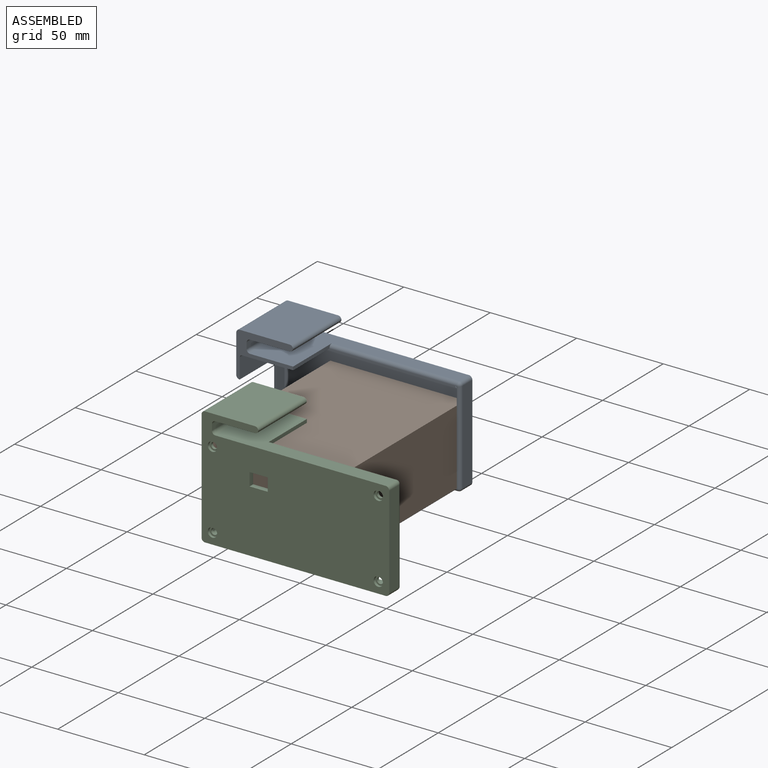
[diagram: assembled view]
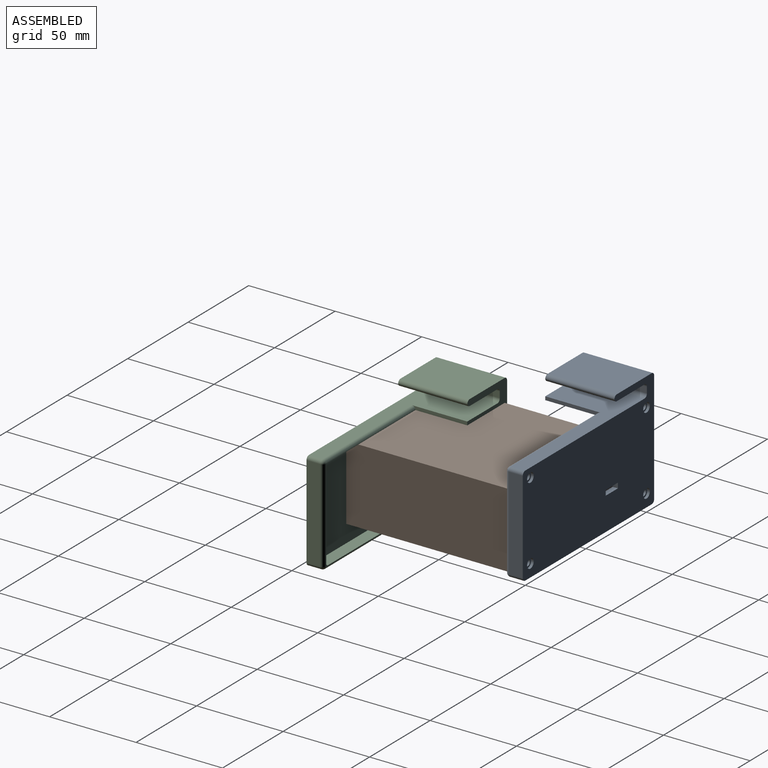
[diagram: assembled view, second angle]
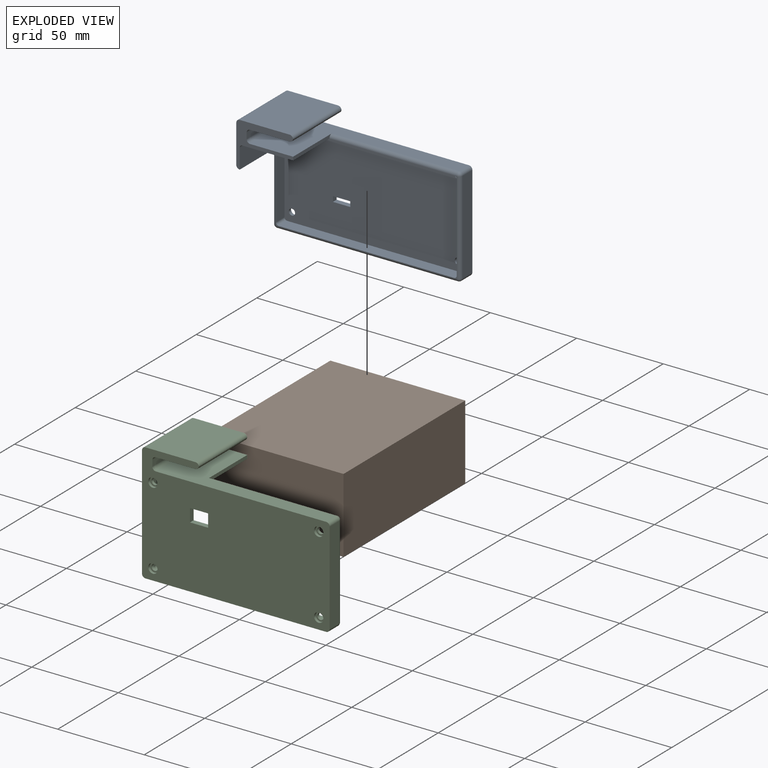
[diagram: exploded view]
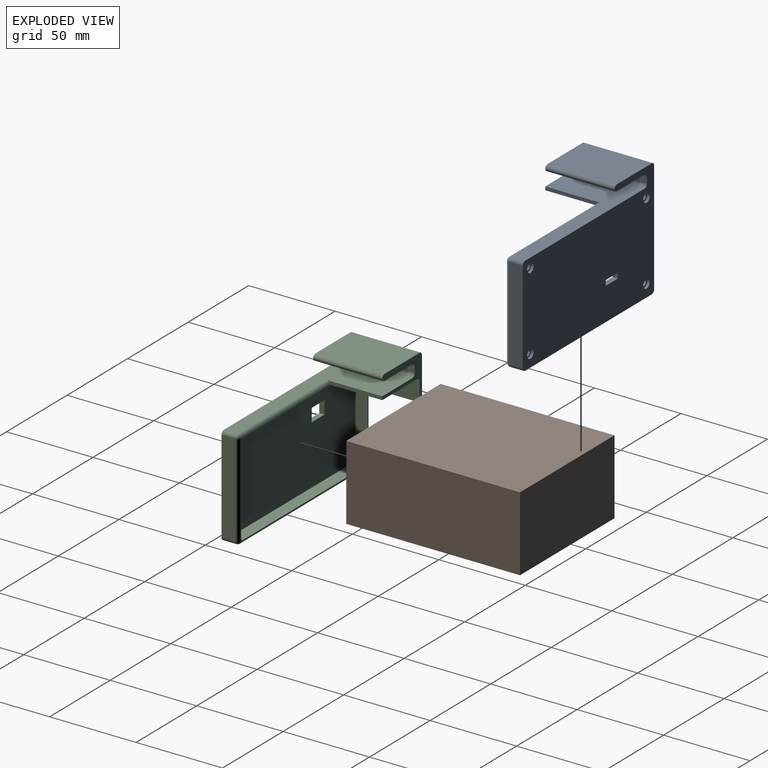
[diagram: exploded view, second angle]
ASSEMBLY  parts=3 mates=4
PART A: 54 faces, bbox 108.5x40x68.5 mm
  f0: plane 1.5x1.5mm, normal (0,1,0), area 0.5mm2, adj f20,f38,f40
  f1: cylinder r=1.8mm len=3.6mm, axis (0,-1,0), area 17mm2, adj f16,f35
  f2: cylinder r=1.8mm len=3.6mm, axis (0,-1,0), area 17mm2, adj f16,f33
  f3: cylinder r=1.8mm len=3.6mm, axis (0,-1,0), area 17mm2, adj f16,f31
  f4: cylinder r=1.8mm len=3.6mm, axis (0,-1,0), area 17mm2, adj f16,f29
  f5: plane 1.5x1.5mm, normal (0,1,0), area 0.5mm2, adj f19,f26,f38
  f6: plane 1.5x1.5mm, normal (0,1,0), area 0.5mm2, adj f18,f26,f41
  f7: plane 98.5x40mm, normal (0,0,1), area 1583.4mm2, adj f11,f21,f25,f41,f43,f44
  f8: plane 53.5x8mm, normal (-1,0,0), area 428mm2, adj f11,f26,f27,f43
  f9: plane 104.5x8mm, normal (0,0,-1), area 836mm2, adj f11,f27,f28,f38
  f10: plane 64.5x40mm, normal (1,0,0), area 1220mm2, adj f11,f25,f28,f40,f48,f49
  f11: plane 108.5x68.5mm, normal (0,-1,0), area 6276.4mm2, adj f7,f8,f9,f10,f22,f23,f24,f27
  f12: plane 50.5x37mm, normal (-1,0,0), area 698.5mm2, adj f16,f17,f20,f25,f40,f49
  f13: plane 101.5x37mm, normal (0,0,-1), area 1591.2mm2, adj f16,f17,f18,f21,f25,f41
  f14: plane 50.5x7mm, normal (1,0,0), area 353.5mm2, adj f16,f18,f19,f26
  f15: plane 101.5x7mm, normal (0,0,1), area 710.5mm2, adj f16,f19,f20,f38
  f16: plane 104.5x53.5mm, normal (0,1,0), area 5518.1mm2, adj f1,f2,f3,f4,f12,f13,f14,f15
  f17: cylinder r=1.5mm len=37mm, axis (0,1,0), area 87.2mm2, adj f12,f13,f16,f25
  f18: cylinder r=1.5mm len=7mm, axis (0,-1,0), area 16.5mm2, adj f6,f13,f14,f16
  f19: cylinder r=1.5mm len=7mm, axis (0,1,0), area 16.5mm2, adj f5,f14,f15,f16
  f20: cylinder r=1.5mm len=7mm, axis (0,-1,0), area 16.5mm2, adj f0,f12,f15,f16
  f21: plane 32x2mm, normal (-1,0,0), area 60.9mm2, adj f7,f13,f25,f41
  f22: plane 40x3.4mm, normal (-1,0,0), area 136mm2, adj f11,f25,f44,f45
  f23: plane 40x22.86mm, normal (0,0,-1), area 914.2mm2, adj f11,f25,f45,f47
  f24: plane 40x28.86mm, normal (0,0,1), area 1154.2mm2, adj f11,f25,f46,f48
  f25: plane 32.86x26mm, normal (0,1,0), area 253.2mm2, adj f7,f10,f12,f13,f17,f21,f22,f23
  f26: cylinder r=2mm len=53.5mm, axis (0,0,-1), area 168.1mm2, adj f5,f6,f8,f14,f37,f42
  f27: cylinder r=2mm len=8mm, axis (0,1,0), area 25.1mm2, adj f8,f9,f11,f37
  f28: cylinder r=2mm len=8mm, axis (0,-1,0), area 25.1mm2, adj f9,f10,f11,f39
  f29: plane 5.4x5.4mm, normal (0,-1,0), area 12.7mm2, adj f4,f30
  f30: cylinder r=2.7mm len=5.4mm, axis (0,-1,0), area 25.4mm2, adj f11,f29
  f31: plane 5.4x5.4mm, normal (0,-1,0), area 12.7mm2, adj f3,f32
  f32: cylinder r=2.7mm len=5.4mm, axis (0,-1,0), area 25.4mm2, adj f11,f31
  f33: plane 5.4x5.4mm, normal (0,-1,0), area 12.7mm2, adj f2,f34
  f34: cylinder r=2.7mm len=5.4mm, axis (0,-1,0), area 25.4mm2, adj f11,f33
  f35: plane 5.4x5.4mm, normal (0,-1,0), area 12.7mm2, adj f1,f36
  f36: cylinder r=2.7mm len=5.4mm, axis (0,-1,0), area 25.4mm2, adj f11,f35
  f37: sphere r=2mm, area 6.3mm2, adj f26,f27,f38
  f38: cylinder r=2mm len=104.5mm, axis (1,0,0), area 328.3mm2, adj f0,f5,f9,f15,f37,f39
  f39: sphere r=2mm, area 6.3mm2, adj f28,f38,f40
  f40: cylinder r=2mm len=42.5mm, axis (0,0,1), area 129.5mm2, adj f0,f10,f12,f39,f49
  f41: cylinder r=2mm len=73.65mm, axis (-1,0,0), area 231.4mm2, adj f6,f7,f13,f21,f42
  f42: sphere r=2mm, area 6.3mm2, adj f26,f41,f43
  f43: cylinder r=2mm len=8mm, axis (0,-1,0), area 25.1mm2, adj f7,f8,f11,f42
  f44: cylinder r=2mm len=40mm, axis (0,-1,0), area 125.7mm2, adj f7,f11,f22,f25
  f45: cylinder r=2mm len=40mm, axis (0,-1,0), area 125.7mm2, adj f11,f22,f23,f25
  f46: cylinder r=2mm len=40mm, axis (0,-1,0), area 117.7mm2, adj f11,f24,f25,f47
  f47: cylinder r=2mm len=40mm, axis (0,-1,0), area 117.7mm2, adj f11,f23,f25,f46
  f48: cylinder r=2mm len=40mm, axis (0,-1,0), area 125.7mm2, adj f10,f11,f24,f25
  f49: cylinder r=2mm len=32mm, axis (0,1,0), area 96.5mm2, adj f10,f12,f25,f40
  f50: plane 3x3mm, normal (-1,0,0), area 9mm2, adj f11,f16,f51,f52
  f51: plane 10x3mm, normal (0,0,1), area 30mm2, adj f11,f16,f50,f53
  f52: plane 10x3mm, normal (0,0,-1), area 30mm2, adj f11,f16,f50,f53
  f53: plane 3x3mm, normal (1,0,0), area 9mm2, adj f11,f16,f51,f52
PART B: 7 faces, bbox 78x100.5x43.4 mm
  f0: plane 100.5x78mm, normal (0,0,1), area 7839mm2, adj f1,f3,f4,f6
  f1: plane 100.5x43.34mm, normal (-1,0,0), area 4355.7mm2, adj f0,f2,f4,f6
  f2: plane 100.5x78mm, normal (0,0,-1), area 7839mm2, adj f1,f3,f4,f6
  f3: plane 100.5x43.34mm, normal (1,0,0), area 4355.7mm2, adj f0,f2,f4,f6
  f4: plane 78.02x43.36mm, normal (0,1,0), area 727.6mm2, adj f0,f1,f2,f3,f5
  f5: plane 69.79x40.25mm, normal (0,1,0), area 2652.9mm2, adj f4
  f6: plane 78x43.34mm, normal (0,-1,0), area 3380.5mm2, adj f0,f1,f2,f3
PART C: 54 faces, bbox 108.5x40x68.5 mm
  f0: plane 1.5x1.5mm, normal (0,1,0), area 0.5mm2, adj f17,f47,f49
  f1: plane 1.5x1.5mm, normal (0,1,0), area 0.5mm2, adj f20,f45,f47
  f2: cylinder r=1.8mm len=3.6mm, axis (0,-1,0), area 17mm2, adj f16,f42
  f3: cylinder r=1.8mm len=3.6mm, axis (0,-1,0), area 17mm2, adj f16,f40
  f4: cylinder r=1.8mm len=3.6mm, axis (0,-1,0), area 17mm2, adj f16,f38
  f5: cylinder r=1.8mm len=3.6mm, axis (0,-1,0), area 17mm2, adj f16,f36
  f6: plane 98.5x40mm, normal (0,0,1), area 1583.4mm2, adj f11,f21,f25,f26,f35,f49
  f7: plane 1.5x1.5mm, normal (0,1,0), area 0.5mm2, adj f19,f32,f45
  f8: plane 64.5x40mm, normal (-1,0,0), area 1220mm2, adj f11,f25,f27,f31,f32,f33
  f9: plane 104.5x8mm, normal (0,0,-1), area 836mm2, adj f11,f31,f34,f45
  f10: plane 53.5x8mm, normal (1,0,0), area 428mm2, adj f11,f34,f35,f47
  f11: plane 108.5x68.5mm, normal (0,-1,0), area 6227.6mm2, adj f6,f8,f9,f10,f22,f23,f24,f26
  f12: plane 50.5x7mm, normal (-1,0,0), area 353.5mm2, adj f16,f17,f20,f47
  f13: plane 101.5x37mm, normal (0,0,-1), area 1591.2mm2, adj f16,f17,f18,f21,f25,f49
  f14: plane 50.5x37mm, normal (1,0,0), area 698.5mm2, adj f16,f18,f19,f25,f32,f33
  f15: plane 101.5x7mm, normal (0,0,1), area 710.5mm2, adj f16,f19,f20,f45
  f16: plane 104.5x53.5mm, normal (0,1,0), area 5469.4mm2, adj f2,f3,f4,f5,f12,f13,f14,f15
  f17: cylinder r=1.5mm len=7mm, axis (0,1,0), area 16.5mm2, adj f0,f12,f13,f16
  f18: cylinder r=1.5mm len=37mm, axis (0,-1,0), area 87.2mm2, adj f13,f14,f16,f25
  f19: cylinder r=1.5mm len=7mm, axis (0,1,0), area 16.5mm2, adj f7,f14,f15,f16
  f20: cylinder r=1.5mm len=7mm, axis (0,-1,0), area 16.5mm2, adj f1,f12,f15,f16
  f21: plane 32x2mm, normal (1,0,0), area 60.9mm2, adj f6,f13,f25,f49
  f22: plane 40x3.4mm, normal (1,0,0), area 136mm2, adj f11,f25,f26,f30
  f23: plane 40x28.86mm, normal (0,0,1), area 1154.2mm2, adj f11,f25,f27,f29
  f24: plane 40x22.86mm, normal (0,0,-1), area 914.2mm2, adj f11,f25,f28,f30
  f25: plane 32.86x26mm, normal (0,1,0), area 253.2mm2, adj f6,f8,f13,f14,f18,f21,f22,f23
  f26: cylinder r=2mm len=40mm, axis (0,1,0), area 125.7mm2, adj f6,f11,f22,f25
  f27: cylinder r=2mm len=40mm, axis (0,-1,0), area 125.7mm2, adj f8,f11,f23,f25
  f28: cylinder r=2mm len=40mm, axis (0,-1,0), area 117.7mm2, adj f11,f24,f25,f29
  f29: cylinder r=2mm len=40mm, axis (0,-1,0), area 117.7mm2, adj f11,f23,f25,f28
  f30: cylinder r=2mm len=40mm, axis (0,-1,0), area 125.7mm2, adj f11,f22,f24,f25
  f31: cylinder r=2mm len=8mm, axis (0,1,0), area 25.1mm2, adj f8,f9,f11,f44
  f32: cylinder r=2mm len=42.5mm, axis (0,0,-1), area 129.5mm2, adj f7,f8,f14,f33,f44
  f33: cylinder r=2mm len=32mm, axis (0,1,0), area 96.5mm2, adj f8,f14,f25,f32
  f34: cylinder r=2mm len=8mm, axis (0,-1,0), area 25.1mm2, adj f9,f10,f11,f46
  f35: cylinder r=2mm len=8mm, axis (0,1,0), area 25.1mm2, adj f6,f10,f11,f48
  f36: plane 5.4x5.4mm, normal (0,-1,0), area 12.7mm2, adj f5,f37
  f37: cylinder r=2.7mm len=5.4mm, axis (0,-1,0), area 25.4mm2, adj f11,f36
  f38: plane 5.4x5.4mm, normal (0,-1,0), area 12.7mm2, adj f4,f39
  f39: cylinder r=2.7mm len=5.4mm, axis (0,-1,0), area 25.4mm2, adj f11,f38
  f40: plane 5.4x5.4mm, normal (0,-1,0), area 12.7mm2, adj f3,f41
  f41: cylinder r=2.7mm len=5.4mm, axis (0,-1,0), area 25.4mm2, adj f11,f40
  f42: plane 5.4x5.4mm, normal (0,-1,0), area 12.7mm2, adj f2,f43
  f43: cylinder r=2.7mm len=5.4mm, axis (0,-1,0), area 25.4mm2, adj f11,f42
  f44: sphere r=2mm, area 6.3mm2, adj f31,f32,f45
  f45: cylinder r=2mm len=104.5mm, axis (1,0,0), area 328.3mm2, adj f1,f7,f9,f15,f44,f46
  f46: sphere r=2mm, area 6.3mm2, adj f34,f45,f47
  f47: cylinder r=2mm len=53.5mm, axis (0,0,1), area 168.1mm2, adj f0,f1,f10,f12,f46,f48
  f48: sphere r=2mm, area 6.3mm2, adj f35,f47,f49
  f49: cylinder r=2mm len=73.65mm, axis (-1,0,0), area 231.4mm2, adj f0,f6,f13,f21,f48
  f50: plane 7.5x3mm, normal (-1,0,0), area 22.5mm2, adj f11,f16,f51,f52
  f51: plane 10.5x3mm, normal (0,0,1), area 31.5mm2, adj f11,f16,f50,f53
  f52: plane 10.5x3mm, normal (0,0,-1), area 31.5mm2, adj f11,f16,f50,f53
  f53: plane 7.5x3mm, normal (1,0,0), area 22.5mm2, adj f11,f16,f51,f52
PLACE A rot(axis=(0,0,1),180deg) t=(68.58,103,-1.2)mm
PLACE B t=(-5.3,9.5,5.3)mm
PLACE C t=(-9.42,16.5,-11.36)mm
MATE planar A.f15 <-> B.f2  axis (0,0,1) through (16.33,106.5,-1.2)mm
MATE planar C.f14 <-> B.f1  axis (1,0,0) through (-9.42,22.14,25.03)mm
MATE planar C.f16 <-> B.f6  axis (0,1,0) through (43.14,9.5,15.23)mm
MATE planar C.f13 <-> B.f0  axis (0,0,-1) through (22.87,23.24,42.14)mm
